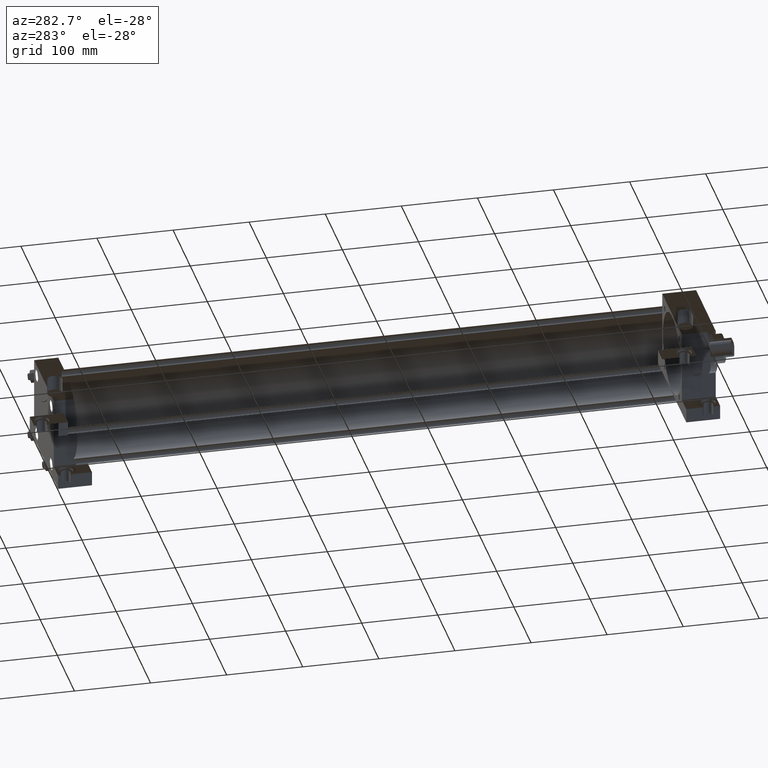
[diagram: clean part render]
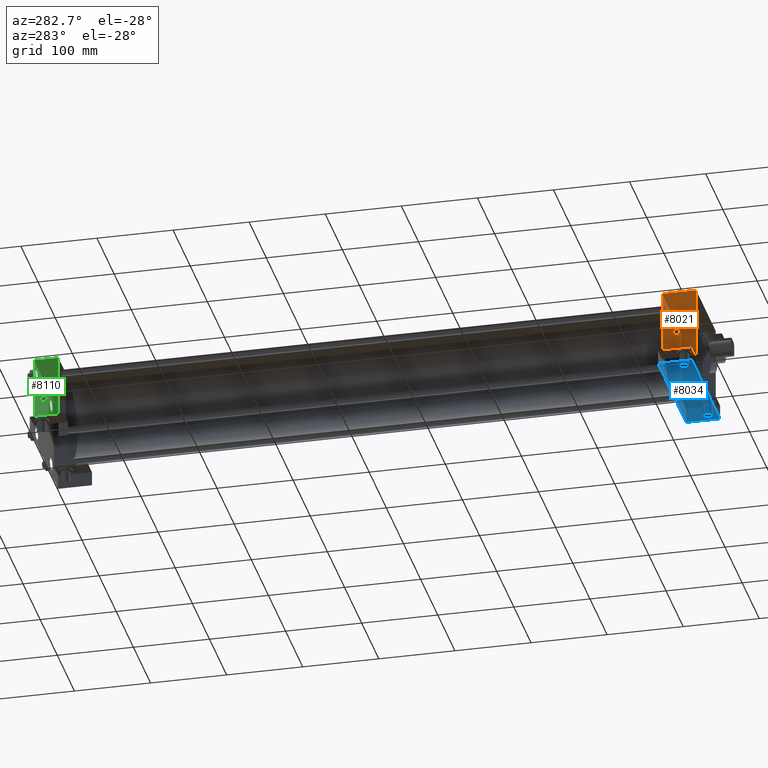
[diagram: same view with three faces highlighted in distinct colors, each labeled with its STEP entity id]
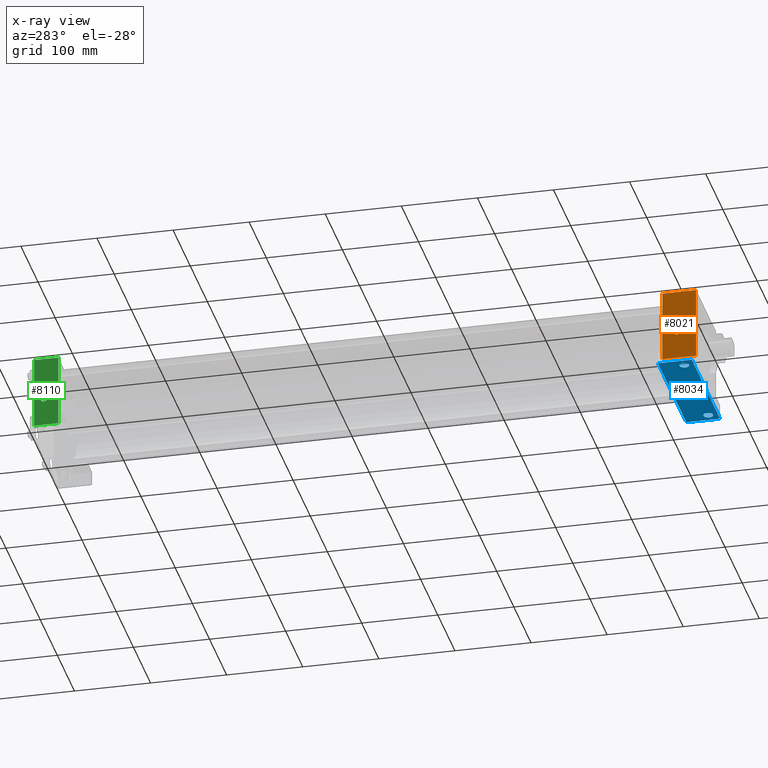
[diagram: x-ray of the same camera — body ghosted, the three highlighted faces saturated]
A machine part, auxiliary view with three faces highlighted in distinct colors.
The next image is the same camera in x-ray (body ghosted, the three faces saturated) — at least one of them is partly hidden behind the body in this view.
Their STEP definitions:

[orange] entity #8021 — the highlighted planar face has unit normal (-1, 0, 0).
#556=VERTEX_POINT('',#557);
#557=CARTESIAN_POINT('',(-5.715000000E+001,7.937500000E+001,-3.810000000E+001));
#558=EDGE_CURVE('',#563,#556,#559,.T.);
#559=LINE('',#560,#561);
#560=CARTESIAN_POINT('',(-5.715000000E+001,7.937500000E+001,5.715000000E+001));
#561=VECTOR('',#562,1.0E+000);
#562=DIRECTION('',(0.0E+000,0.0E+000,-1.0E+000));
#563=VERTEX_POINT('',#564);
#564=CARTESIAN_POINT('',(-5.715000000E+001,7.937500000E+001,5.715000000E+001));
#663=VERTEX_POINT('',#664);
#664=CARTESIAN_POINT('',(-5.715000000E+001,3.492500000E+001,5.715000000E+001));
#665=EDGE_CURVE('',#663,#670,#666,.T.);
#666=LINE('',#667,#668);
#667=CARTESIAN_POINT('',(-5.715000000E+001,3.492500000E+001,5.715000000E+001));
#668=VECTOR('',#669,1.0E+000);
#669=DIRECTION('',(0.0E+000,0.0E+000,-1.0E+000));
#670=VERTEX_POINT('',#671);
#671=CARTESIAN_POINT('',(-5.715000000E+001,3.492500000E+001,-3.810000000E+001));
#698=FACE_OUTER_BOUND('',#700,.T.);
#699=FACE_BOUND('',#701,.T.);
#700=EDGE_LOOP('',(#702));
#701=EDGE_LOOP('',(#711,#712,#713,#714));
#702=ORIENTED_EDGE('',*,*,#703,.T.);
#703=EDGE_CURVE('',#709,#709,#704,.T.);
#704=CIRCLE('',#705,4.365625000E+000);
#705=AXIS2_PLACEMENT_3D('',#706,#707,#708);
#706=CARTESIAN_POINT('',(-5.715000000E+001,6.032500000E+001,0.000000000E+000));
#707=DIRECTION('',(1.0E+000,0.0E+000,0.0E+000));
#708=DIRECTION('',(0.0E+000,0.0E+000,1.0E+000));
#709=VERTEX_POINT('',#710);
#710=CARTESIAN_POINT('',(-5.715000000E+001,6.032500000E+001,4.365625000E+000));
#711=ORIENTED_EDGE('',*,*,#558,.T.);
#712=ORIENTED_EDGE('',*,*,#715,.T.);
#713=ORIENTED_EDGE('',*,*,#665,.F.);
#714=ORIENTED_EDGE('',*,*,#720,.F.);
#715=EDGE_CURVE('',#556,#670,#716,.T.);
#716=LINE('',#717,#718);
#717=CARTESIAN_POINT('',(-5.715000000E+001,7.937500000E+001,-3.810000000E+001));
#718=VECTOR('',#719,1.0E+000);
#719=DIRECTION('',(0.0E+000,-1.0E+000,0.0E+000));
#720=EDGE_CURVE('',#563,#663,#721,.T.);
#721=LINE('',#722,#723);
#722=CARTESIAN_POINT('',(-5.715000000E+001,7.937500000E+001,5.715000000E+001));
#723=VECTOR('',#724,1.0E+000);
#724=DIRECTION('',(0.0E+000,-1.0E+000,0.0E+000));
#725=PLANE('',#726);
#726=AXIS2_PLACEMENT_3D('',#727,#728,#729);
#727=CARTESIAN_POINT('',(-5.715000000E+001,7.937500000E+001,5.715000000E+001));
#728=DIRECTION('',(-1.0E+000,0.0E+000,0.0E+000));
#729=DIRECTION('',(0.0E+000,0.0E+000,1.0E+000));
#8021=ADVANCED_FACE('',(#698,#699),#725,.T.);

[blue] entity #8034 — the highlighted planar face has unit normal (0, 0, 1).
#534=VERTEX_POINT('',#536);
#536=CARTESIAN_POINT('',(8.255000000E+001,7.937500000E+001,-5.715000000E+001));
#537=EDGE_CURVE('',#534,#542,#538,.T.);
#538=LINE('',#539,#540);
#539=CARTESIAN_POINT('',(5.715000000E+001,7.937500000E+001,-5.715000000E+001));
#540=VECTOR('',#541,1.0E+000);
#541=DIRECTION('',(-1.0E+000,0.0E+000,0.0E+000));
#542=VERTEX_POINT('',#543);
#543=CARTESIAN_POINT('',(-8.255000000E+001,7.937500000E+001,-5.715000000E+001));
#628=EDGE_CURVE('',#633,#634,#629,.T.);
#629=LINE('',#630,#631);
#630=CARTESIAN_POINT('',(8.255000000E+001,3.492500000E+001,-5.715000000E+001));
#631=VECTOR('',#632,1.0E+000);
#632=DIRECTION('',(-1.0E+000,0.0E+000,0.0E+000));
#633=VERTEX_POINT('',#635);
#634=VERTEX_POINT('',#636);
#635=CARTESIAN_POINT('',(8.255000000E+001,3.492500000E+001,-5.715000000E+001));
#636=CARTESIAN_POINT('',(-8.255000000E+001,3.492500000E+001,-5.715000000E+001));
#790=EDGE_CURVE('',#633,#534,#791,.T.);
#791=LINE('',#792,#793);
#792=CARTESIAN_POINT('',(8.255000000E+001,3.492500000E+001,-5.715000000E+001));
#793=VECTOR('',#794,1.0E+000);
#794=DIRECTION('',(0.0E+000,1.0E+000,0.0E+000));
#833=EDGE_CURVE('',#634,#542,#834,.T.);
#834=LINE('',#835,#836);
#835=CARTESIAN_POINT('',(-8.255000000E+001,3.492500000E+001,-5.715000000E+001));
#836=VECTOR('',#837,1.0E+000);
#837=DIRECTION('',(0.0E+000,1.0E+000,0.0E+000));
#875=EDGE_CURVE('',#881,#881,#876,.F.);
#876=CIRCLE('',#877,6.350000000E+000);
#877=AXIS2_PLACEMENT_3D('',#878,#879,#880);
#878=CARTESIAN_POINT('',(6.985000000E+001,4.762500000E+001,-5.715000000E+001));
#879=DIRECTION('',(0.0E+000,0.0E+000,1.0E+000));
#880=DIRECTION('',(1.0E+000,0.0E+000,0.0E+000));
#881=VERTEX_POINT('',#882);
#882=CARTESIAN_POINT('',(7.620000000E+001,4.762500000E+001,-5.715000000E+001));
#932=EDGE_CURVE('',#938,#938,#933,.F.);
#933=CIRCLE('',#934,6.350000000E+000);
#934=AXIS2_PLACEMENT_3D('',#935,#936,#937);
#935=CARTESIAN_POINT('',(-6.985000000E+001,4.762500000E+001,-5.715000000E+001));
#936=DIRECTION('',(0.0E+000,0.0E+000,1.0E+000));
#937=DIRECTION('',(1.0E+000,0.0E+000,0.0E+000));
#938=VERTEX_POINT('',#939);
#939=CARTESIAN_POINT('',(-6.350000000E+001,4.762500000E+001,-5.715000000E+001));
#984=FACE_OUTER_BOUND('',#988,.T.);
#985=FACE_BOUND('',#989,.T.);
#986=FACE_BOUND('',#990,.T.);
#987=FACE_BOUND('',#991,.T.);
#988=EDGE_LOOP('',(#992));
#989=EDGE_LOOP('',(#1001));
#990=EDGE_LOOP('',(#1002));
#991=EDGE_LOOP('',(#1003,#1004,#1005,#1006));
#992=ORIENTED_EDGE('',*,*,#993,.T.);
#993=EDGE_CURVE('',#999,#999,#994,.T.);
#994=CIRCLE('',#995,4.365625000E+000);
#995=AXIS2_PLACEMENT_3D('',#996,#997,#998);
#996=CARTESIAN_POINT('',(0.000000000E+000,6.032500000E+001,-5.715000000E+001));
#997=DIRECTION('',(0.0E+000,0.0E+000,1.0E+000));
#998=DIRECTION('',(1.0E+000,0.0E+000,0.0E+000));
#999=VERTEX_POINT('',#1000);
#1000=CARTESIAN_POINT('',(4.365625000E+000,6.032500000E+001,-5.715000000E+001));
#1001=ORIENTED_EDGE('',*,*,#875,.F.);
#1002=ORIENTED_EDGE('',*,*,#932,.F.);
#1003=ORIENTED_EDGE('',*,*,#628,.T.);
#1004=ORIENTED_EDGE('',*,*,#833,.T.);
#1005=ORIENTED_EDGE('',*,*,#537,.F.);
#1006=ORIENTED_EDGE('',*,*,#790,.F.);
#1007=PLANE('',#1008);
#1008=AXIS2_PLACEMENT_3D('',#1009,#1010,#1011);
#1009=CARTESIAN_POINT('',(8.255000000E+001,7.937500000E+001,-5.715000000E+001));
#1010=DIRECTION('',(0.0E+000,0.0E+000,1.0E+000));
#1011=DIRECTION('',(1.0E+000,0.0E+000,0.0E+000));
#8034=ADVANCED_FACE('',(#984,#985,#986,#987),#1007,.F.);

[green] entity #8110 — the highlighted planar face has unit normal (-1, 0, 0).
#3178=EDGE_CURVE('',#3184,#3184,#3179,.T.);
#3179=CIRCLE('',#3180,4.365625000E+000);
#3180=AXIS2_PLACEMENT_3D('',#3181,#3182,#3183);
#3181=CARTESIAN_POINT('',(-5.715000000E+001,8.921750000E+002,0.000000000E+000));
#3182=DIRECTION('',(1.0E+000,0.0E+000,0.0E+000));
#3183=DIRECTION('',(0.0E+000,0.0E+000,1.0E+000));
#3184=VERTEX_POINT('',#3185);
#3185=CARTESIAN_POINT('',(-5.715000000E+001,8.921750000E+002,4.365625000E+000));
#3619=EDGE_CURVE('',#3624,#3625,#3620,.T.);
#3620=LINE('',#3621,#3622);
#3621=CARTESIAN_POINT('',(-5.715000000E+001,9.048750000E+002,-3.810000000E+001));
#3622=VECTOR('',#3623,1.0E+000);
#3623=DIRECTION('',(0.0E+000,-1.0E+000,0.0E+000));
#3624=VERTEX_POINT('',#3626);
#3625=VERTEX_POINT('',#3627);
#3626=CARTESIAN_POINT('',(-5.715000000E+001,9.048750000E+002,-3.810000000E+001));
#3627=CARTESIAN_POINT('',(-5.715000000E+001,8.731250000E+002,-3.810000000E+001));
#3699=LINE('',#3700,#3701);
#3700=CARTESIAN_POINT('',(-5.715000000E+001,8.731250000E+002,5.715000000E+001));
#3701=VECTOR('',#3702,1.0E+000);
#3702=DIRECTION('',(0.0E+000,0.0E+000,-1.0E+000));
#3750=EDGE_CURVE('',#3755,#3624,#3751,.T.);
#3751=LINE('',#3752,#3753);
#3752=CARTESIAN_POINT('',(-5.715000000E+001,9.048750000E+002,5.715000000E+001));
#3753=VECTOR('',#3754,1.0E+000);
#3754=DIRECTION('',(0.0E+000,0.0E+000,-1.0E+000));
#3755=VERTEX_POINT('',#3756);
#3756=CARTESIAN_POINT('',(-5.715000000E+001,9.048750000E+002,5.715000000E+001));
#3783=EDGE_CURVE('',#3755,#3788,#3784,.T.);
#3784=LINE('',#3785,#3786);
#3785=CARTESIAN_POINT('',(-5.715000000E+001,9.048750000E+002,5.715000000E+001));
#3786=VECTOR('',#3787,1.0E+000);
#3787=DIRECTION('',(0.0E+000,-1.0E+000,0.0E+000));
#3788=VERTEX_POINT('',#3789);
#3789=CARTESIAN_POINT('',(-5.715000000E+001,8.731250000E+002,5.715000000E+001));
#3822=FACE_OUTER_BOUND('',#3824,.T.);
#3823=FACE_BOUND('',#3825,.T.);
#3824=EDGE_LOOP('',(#3826));
#3825=EDGE_LOOP('',(#3827,#3828,#3829,#3830));
#3826=ORIENTED_EDGE('',*,*,#3178,.T.);
#3827=ORIENTED_EDGE('',*,*,#3750,.T.);
#3828=ORIENTED_EDGE('',*,*,#3619,.T.);
#3829=ORIENTED_EDGE('',*,*,#3831,.F.);
#3830=ORIENTED_EDGE('',*,*,#3783,.F.);
#3831=EDGE_CURVE('',#3788,#3625,#3699,.T.);
#3832=PLANE('',#3833);
#3833=AXIS2_PLACEMENT_3D('',#3834,#3835,#3836);
#3834=CARTESIAN_POINT('',(-5.715000000E+001,9.048750000E+002,5.715000000E+001));
#3835=DIRECTION('',(-1.0E+000,0.0E+000,0.0E+000));
#3836=DIRECTION('',(0.0E+000,0.0E+000,1.0E+000));
#8110=ADVANCED_FACE('',(#3822,#3823),#3832,.T.);